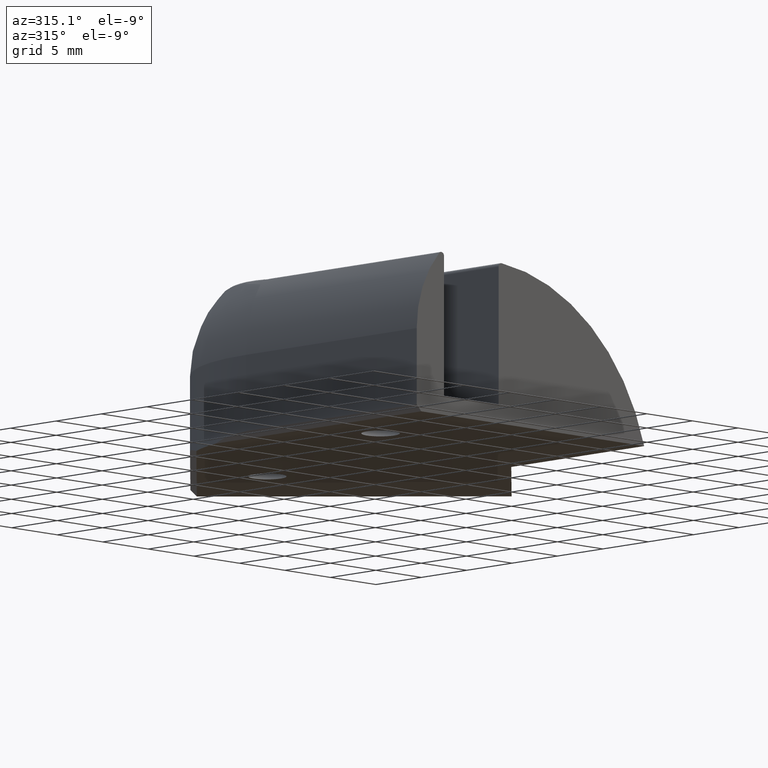
[diagram: clean part render]
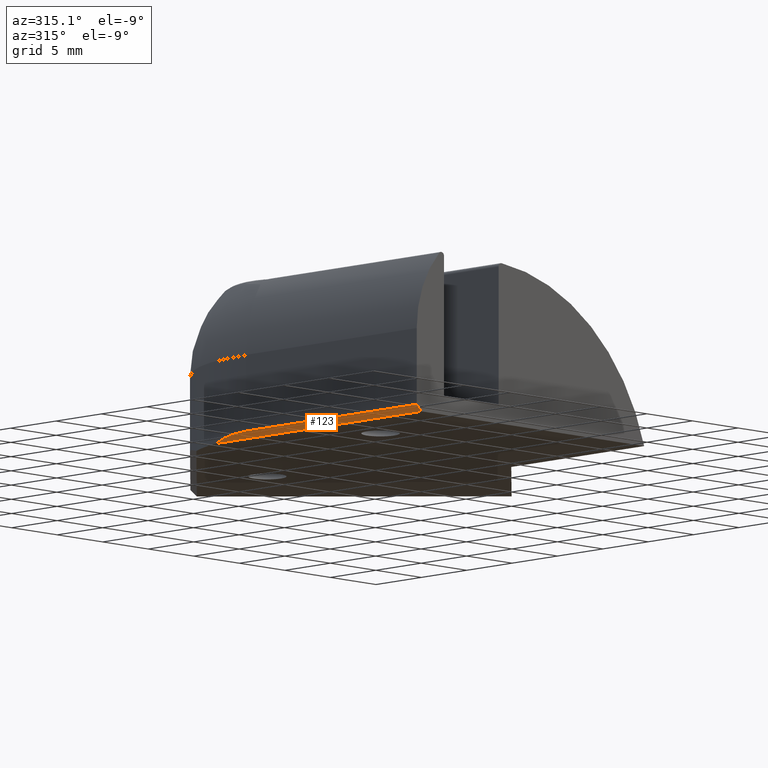
[diagram: same view with one face highlighted and labeled with its STEP entity id]
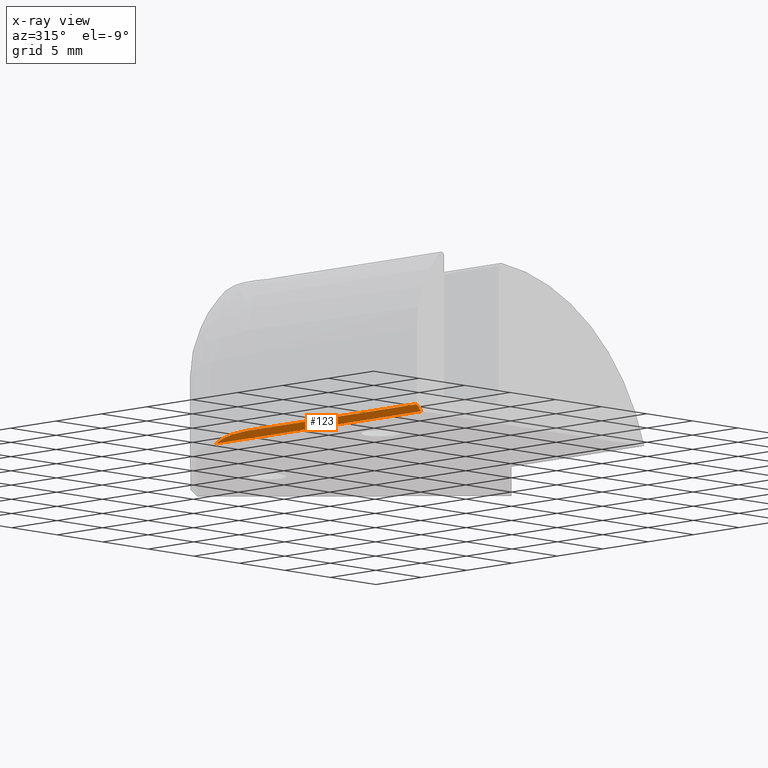
[diagram: x-ray of the same camera — body ghosted, the highlighted face saturated]
A machine part, auxiliary view. The second image highlights one B-rep face of the part: STEP entity #123.
The next image is the same camera in x-ray: the body ghosted, the highlighted face saturated — about 0% of this face is hidden behind the body in this view.
In plain terms, the highlighted planar face has unit normal (0.7071, 0, 0.7071).
Its self-contained STEP definition (entity closure, byte-faithful):
#66=CARTESIAN_POINT('',(-24.479080326508324,7.974041190338809,-3.552714E-015));
#67=VERTEX_POINT('',#66);
#75=CARTESIAN_POINT('',(-24.979079826508496,4.133470204143563,0.499999499999704));
#76=VERTEX_POINT('',#75);
#77=CARTESIAN_POINT('',(-9.979079826508494,4.133470204143563,-14.500000499986363));
#78=DIRECTION('',(-0.707106781186219,0.0,-0.707106781186876));
#79=DIRECTION('',(0.707106781186876,0.0,-0.707106781186219));
#80=AXIS2_PLACEMENT_3D('',#77,#78,#79);
#81=ELLIPSE('',#80,21.213203435586575,15.0);
#82=EDGE_CURVE('',#76,#67,#81,.T.);
#93=CARTESIAN_POINT('',(-24.979079826508496,-14.646994881391919,0.499999499999704));
#94=DIRECTION('',(0.707106781186219,0.0,0.707106781186876));
#95=DIRECTION('',(0.707106781186876,0.0,-0.707106781186219));
#96=AXIS2_PLACEMENT_3D('',#93,#94,#95);
#97=PLANE('',#96);
#98=CARTESIAN_POINT('',(-24.979079826508496,-14.646994881391919,0.499999499999704));
#99=VERTEX_POINT('',#98);
#100=CARTESIAN_POINT('',(-24.979079826508496,-14.646994881391919,0.499999499999704));
#101=DIRECTION('',(0.0,1.0,0.0));
#102=VECTOR('',#101,18.780465085535479);
#103=LINE('',#100,#102);
#104=EDGE_CURVE('',#99,#76,#103,.T.);
#105=ORIENTED_EDGE('',*,*,#104,.T.);
#106=ORIENTED_EDGE('',*,*,#82,.T.);
#107=CARTESIAN_POINT('',(-24.479080326508324,-14.646994881391919,-3.552714E-015));
#108=VERTEX_POINT('',#107);
#109=CARTESIAN_POINT('',(-24.479080326508324,-14.646994881391919,-3.552714E-015));
#110=DIRECTION('',(0.0,1.0,0.0));
#111=VECTOR('',#110,22.621036071730728);
#112=LINE('',#109,#111);
#113=EDGE_CURVE('',#108,#67,#112,.T.);
#114=ORIENTED_EDGE('',*,*,#113,.F.);
#115=CARTESIAN_POINT('',(-24.979079826508496,-14.646994881391919,0.499999499999704));
#116=DIRECTION('',(0.707106781186876,0.0,-0.707106781186219));
#117=VECTOR('',#116,0.707106074079681);
#118=LINE('',#115,#117);
#119=EDGE_CURVE('',#99,#108,#118,.T.);
#120=ORIENTED_EDGE('',*,*,#119,.F.);
#121=EDGE_LOOP('',(#105,#106,#114,#120));
#122=FACE_OUTER_BOUND('',#121,.T.);
#123=ADVANCED_FACE('',(#122),#97,.F.);